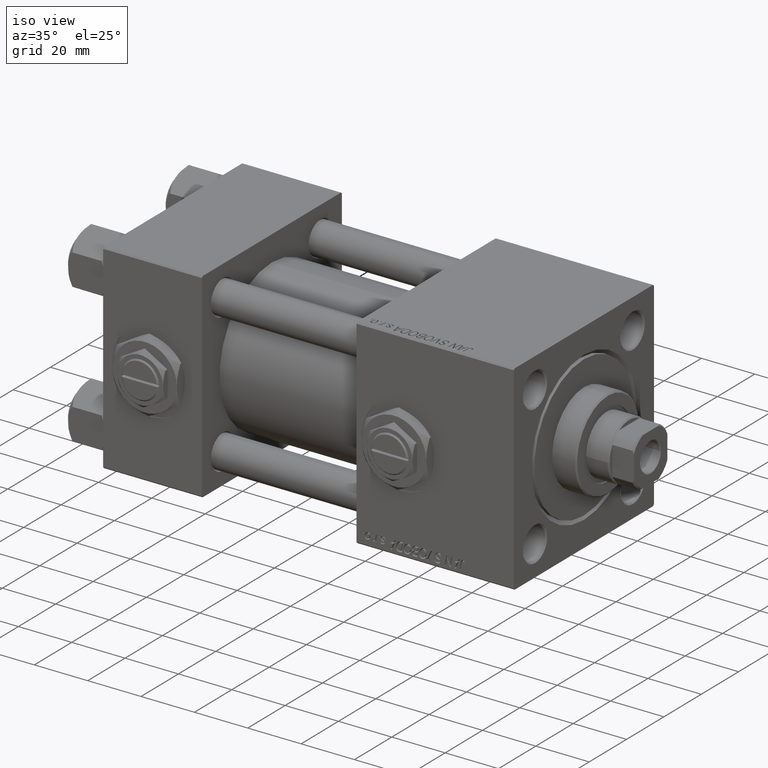
[diagram: clean part render]
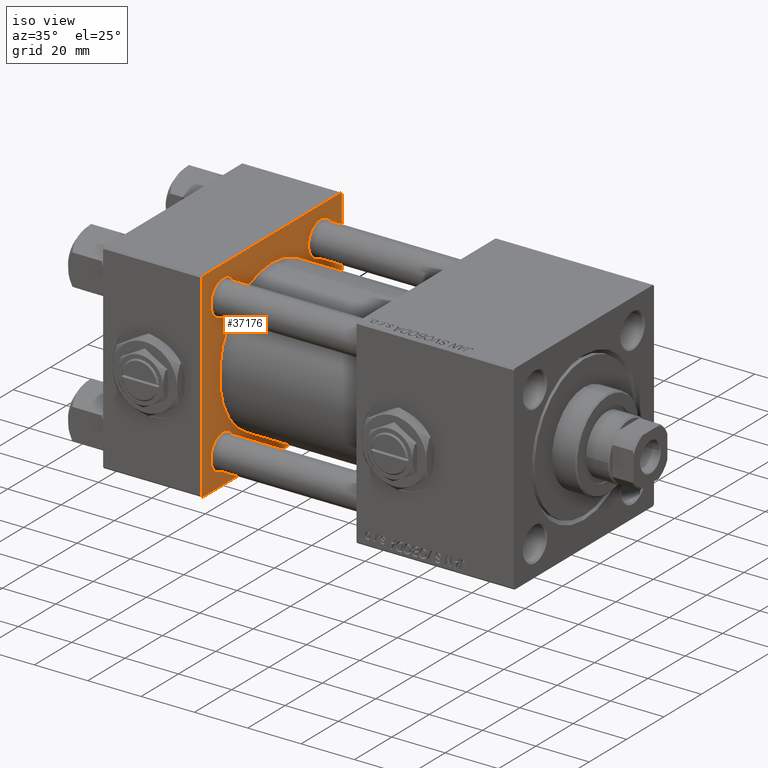
[diagram: same view with one face highlighted and labeled with its STEP entity id]
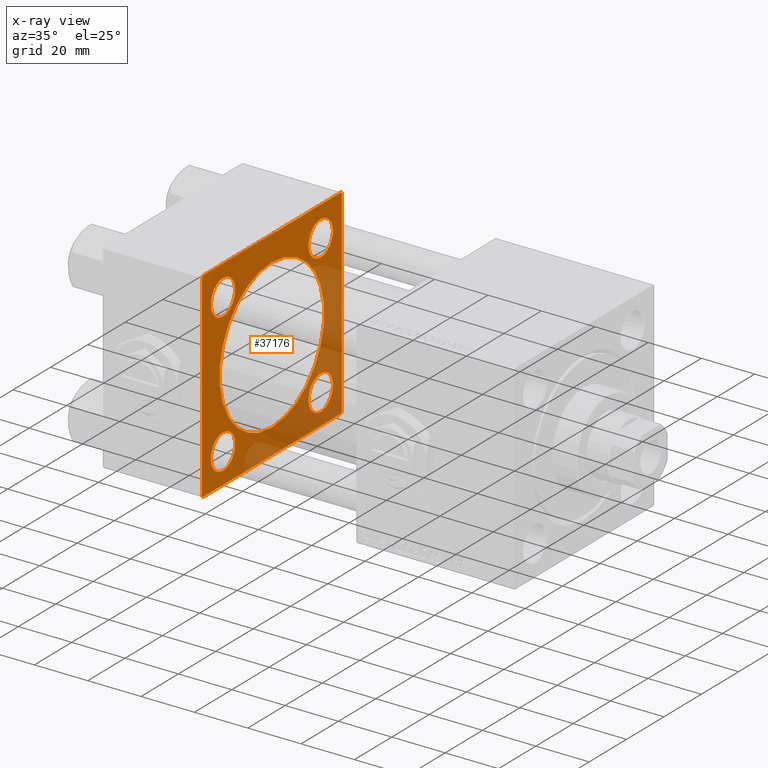
[diagram: x-ray of the same camera — body ghosted, the highlighted face saturated]
A machine part, iso view. The second image highlights one B-rep face of the part: STEP entity #37176.
The next image is the same camera in x-ray: the body ghosted, the highlighted face saturated — about 35% of this face is hidden behind the body in this view.
In plain terms, the highlighted planar face has unit normal (-1, 0, 0).
Its self-contained STEP definition (entity closure, byte-faithful):
#233 = CARTESIAN_POINT ( 'NONE',  ( 37.00000000000000000, 26.14999999999999858, 19.64999999999997016 ) ) ;
#717 = CARTESIAN_POINT ( 'NONE',  ( 37.00000000000000000, -2.602085213965210642E-15, 0.000000000000000000 ) ) ;
#933 = ORIENTED_EDGE ( 'NONE', *, *, #36796, .T. ) ;
#966 = CARTESIAN_POINT ( 'NONE',  ( 37.00000000000000000, -26.14999999999999147, 19.65000000000000213 ) ) ;
#1410 = ORIENTED_EDGE ( 'NONE', *, *, #13169, .T. ) ;
#1576 = DIRECTION ( 'NONE',  ( -0.000000000000000000, 0.7071067811865474617, 0.7071067811865474617 ) ) ;
#1691 = EDGE_CURVE ( 'NONE', #19577, #28573, #36959, .T. ) ;
#2752 = VERTEX_POINT ( 'NONE', #24227 ) ;
#3635 = ORIENTED_EDGE ( 'NONE', *, *, #32104, .T. ) ;
#4008 = DIRECTION ( 'NONE',  ( -1.000000000000000000, 0.000000000000000000, -0.000000000000000000 ) ) ;
#4153 = ORIENTED_EDGE ( 'NONE', *, *, #30692, .T. ) ;
#4421 = DIRECTION ( 'NONE',  ( 0.000000000000000000, 0.000000000000000000, 1.000000000000000000 ) ) ;
#5021 = DIRECTION ( 'NONE',  ( -1.000000000000000000, 0.000000000000000000, -0.000000000000000000 ) ) ;
#5163 = DIRECTION ( 'NONE',  ( 0.000000000000000000, 0.7071067811865524577, -0.7071067811865426878 ) ) ;
#5427 = EDGE_LOOP ( 'NONE', ( #32130, #1410 ) ) ;
#6029 = CARTESIAN_POINT ( 'NONE',  ( 37.00000000000000000, -37.50000000000000711, 37.49999999999999289 ) ) ;
#6327 = AXIS2_PLACEMENT_3D ( 'NONE', #23067, #6703, #31500 ) ;
#6353 = PLANE ( 'NONE',  #35761 ) ;
#6396 = VECTOR ( 'NONE', #25829, 1000.000000000000000 ) ;
#6703 = DIRECTION ( 'NONE',  ( -1.000000000000000000, 0.000000000000000000, -0.000000000000000000 ) ) ;
#6993 = CIRCLE ( 'NONE', #44067, 6.500000000000008882 ) ;
#7079 = CARTESIAN_POINT ( 'NONE',  ( 37.00000000000000000, -26.14999999999999147, -19.65000000000000924 ) ) ;
#7190 = CARTESIAN_POINT ( 'NONE',  ( 37.00000000000000000, -37.50000000000000711, 36.99999999999999289 ) ) ;
#7823 = CIRCLE ( 'NONE', #32225, 6.500000000000030198 ) ;
#8778 = ORIENTED_EDGE ( 'NONE', *, *, #41137, .T. ) ;
#8993 = VERTEX_POINT ( 'NONE', #18019 ) ;
#9251 = VERTEX_POINT ( 'NONE', #7079 ) ;
#9454 = EDGE_CURVE ( 'NONE', #39537, #2752, #13632, .T. ) ;
#9472 = LINE ( 'NONE', #6029, #6396 ) ;
#9778 = DIRECTION ( 'NONE',  ( 0.000000000000000000, 0.000000000000000000, 1.000000000000000000 ) ) ;
#9956 = DIRECTION ( 'NONE',  ( 0.000000000000000000, 0.000000000000000000, 1.000000000000000000 ) ) ;
#10534 = EDGE_CURVE ( 'NONE', #41410, #13268, #29166, .T. ) ;
#10811 = DIRECTION ( 'NONE',  ( 0.000000000000000000, -0.7071067811865474617, 0.7071067811865474617 ) ) ;
#10992 = ORIENTED_EDGE ( 'NONE', *, *, #51998, .F. ) ;
#11091 = EDGE_CURVE ( 'NONE', #47037, #31440, #7823, .T. ) ;
#11214 = CIRCLE ( 'NONE', #39030, 6.500000000000030198 ) ;
#11706 = EDGE_CURVE ( 'NONE', #15715, #21168, #17088, .T. ) ;
#11904 = EDGE_LOOP ( 'NONE', ( #15043, #51636 ) ) ;
#11927 = VECTOR ( 'NONE', #1576, 1000.000000000000114 ) ;
#12068 = VECTOR ( 'NONE', #5163, 1000.000000000000000 ) ;
#12614 = EDGE_CURVE ( 'NONE', #37532, #44684, #6993, .T. ) ;
#13021 = DIRECTION ( 'NONE',  ( 0.000000000000000000, 0.000000000000000000, 1.000000000000000000 ) ) ;
#13169 = EDGE_CURVE ( 'NONE', #9251, #50340, #34846, .T. ) ;
#13268 = VERTEX_POINT ( 'NONE', #23788 ) ;
#13459 = LINE ( 'NONE', #34304, #11927 ) ;
#13632 = LINE ( 'NONE', #14405, #22898 ) ;
#13656 = EDGE_CURVE ( 'NONE', #22536, #2752, #47999, .T. ) ;
#13740 = DIRECTION ( 'NONE',  ( -1.000000000000000000, 0.000000000000000000, -0.000000000000000000 ) ) ;
#13805 = CIRCLE ( 'NONE', #50879, 6.500000000000002665 ) ;
#14001 = FACE_OUTER_BOUND ( 'NONE', #51853, .T. ) ;
#14260 = CARTESIAN_POINT ( 'NONE',  ( 37.00000000000000000, 0.000000000000000000, 0.000000000000000000 ) ) ;
#14405 = CARTESIAN_POINT ( 'NONE',  ( 37.00000000000000000, 37.49999999999999289, -37.50000000000000000 ) ) ;
#14678 = CIRCLE ( 'NONE', #34041, 6.500000000000008882 ) ;
#14699 = CARTESIAN_POINT ( 'NONE',  ( 37.00000000000000000, -26.14999999999999147, 26.15000000000000924 ) ) ;
#14957 = DIRECTION ( 'NONE',  ( 0.000000000000000000, 0.000000000000000000, 1.000000000000000000 ) ) ;
#15043 = ORIENTED_EDGE ( 'NONE', *, *, #15178, .T. ) ;
#15178 = EDGE_CURVE ( 'NONE', #43550, #50293, #11214, .T. ) ;
#15715 = VERTEX_POINT ( 'NONE', #51174 ) ;
#15808 = DIRECTION ( 'NONE',  ( 0.000000000000000000, -1.000000000000000000, -9.251858538542971581E-17 ) ) ;
#16228 = DIRECTION ( 'NONE',  ( 0.000000000000000000, 0.000000000000000000, -1.000000000000000000 ) ) ;
#16454 = CARTESIAN_POINT ( 'NONE',  ( 37.00000000000000000, -26.14999999999999147, 26.15000000000000924 ) ) ;
#17088 = CIRCLE ( 'NONE', #46595, 28.00000000000000000 ) ;
#17311 = CARTESIAN_POINT ( 'NONE',  ( 37.00000000000000000, 26.14999999999999858, 26.15000000000000213 ) ) ;
#17522 = CARTESIAN_POINT ( 'NONE',  ( 37.00000000000000000, -37.50000000000000000, -37.00000000000003553 ) ) ;
#17679 = DIRECTION ( 'NONE',  ( -1.000000000000000000, 0.000000000000000000, -0.000000000000000000 ) ) ;
#17924 = CARTESIAN_POINT ( 'NONE',  ( 37.00000000000000000, 26.14999999999999858, -26.15000000000000213 ) ) ;
#18019 = CARTESIAN_POINT ( 'NONE',  ( 37.00000000000000000, 36.99999999999999289, 37.50000000000000000 ) ) ;
#18262 = CARTESIAN_POINT ( 'NONE',  ( 37.00000000000000000, -37.00000000000000711, 37.49999999999999289 ) ) ;
#18821 = VECTOR ( 'NONE', #10811, 1000.000000000000114 ) ;
#19577 = VERTEX_POINT ( 'NONE', #18262 ) ;
#20167 = ORIENTED_EDGE ( 'NONE', *, *, #35113, .T. ) ;
#20958 = VECTOR ( 'NONE', #29553, 1000.000000000000114 ) ;
#21168 = VERTEX_POINT ( 'NONE', #45754 ) ;
#21222 = VECTOR ( 'NONE', #16228, 1000.000000000000000 ) ;
#21229 = EDGE_LOOP ( 'NONE', ( #933, #26314 ) ) ;
#21894 = CARTESIAN_POINT ( 'NONE',  ( 37.00000000000000000, 26.14999999999999858, -32.65000000000003411 ) ) ;
#22536 = VERTEX_POINT ( 'NONE', #17522 ) ;
#22794 = EDGE_LOOP ( 'NONE', ( #36617, #37709 ) ) ;
#22898 = VECTOR ( 'NONE', #50041, 1000.000000000000000 ) ;
#23067 = CARTESIAN_POINT ( 'NONE',  ( 37.00000000000000000, 26.14999999999999858, -26.15000000000000213 ) ) ;
#23472 = DIRECTION ( 'NONE',  ( 0.000000000000000000, 0.000000000000000000, 1.000000000000000000 ) ) ;
#23656 = AXIS2_PLACEMENT_3D ( 'NONE', #17311, #4008, #51252 ) ;
#23788 = CARTESIAN_POINT ( 'NONE',  ( 37.00000000000000000, 37.49999999999999289, -36.99999999999998579 ) ) ;
#23905 = AXIS2_PLACEMENT_3D ( 'NONE', #34105, #33846, #41779 ) ;
#23957 = CARTESIAN_POINT ( 'NONE',  ( 37.00000000000000000, -26.14999999999999147, 32.65000000000001990 ) ) ;
#24227 = CARTESIAN_POINT ( 'NONE',  ( 37.00000000000000000, -37.00000000000002132, -37.50000000000000711 ) ) ;
#24587 = VECTOR ( 'NONE', #15808, 1000.000000000000000 ) ;
#24771 = CARTESIAN_POINT ( 'NONE',  ( 37.00000000000000000, 37.49999999999999289, 37.50000000000000000 ) ) ;
#25339 = CARTESIAN_POINT ( 'NONE',  ( 37.00000000000000000, -26.14999999999999147, -32.65000000000001279 ) ) ;
#25829 = DIRECTION ( 'NONE',  ( 0.000000000000000000, 9.251858538542971581E-17, -1.000000000000000000 ) ) ;
#26134 = FACE_BOUND ( 'NONE', #5427, .T. ) ;
#26314 = ORIENTED_EDGE ( 'NONE', *, *, #12614, .T. ) ;
#27959 = CARTESIAN_POINT ( 'NONE',  ( 37.00000000000000000, -37.00000000000002132, -37.50000000000000711 ) ) ;
#28541 = EDGE_CURVE ( 'NONE', #50293, #43550, #28695, .T. ) ;
#28573 = VERTEX_POINT ( 'NONE', #7190 ) ;
#28695 = CIRCLE ( 'NONE', #23656, 6.500000000000030198 ) ;
#29166 = LINE ( 'NONE', #48677, #21222 ) ;
#29553 = DIRECTION ( 'NONE',  ( -0.000000000000000000, -0.7071067811865474617, -0.7071067811865474617 ) ) ;
#30692 = EDGE_CURVE ( 'NONE', #39537, #13268, #13459, .T. ) ;
#30800 = DIRECTION ( 'NONE',  ( -1.000000000000000000, 0.000000000000000000, -0.000000000000000000 ) ) ;
#30869 = LINE ( 'NONE', #46968, #18821 ) ;
#31125 = DIRECTION ( 'NONE',  ( 1.000000000000000000, -0.000000000000000000, 0.000000000000000000 ) ) ;
#31440 = VERTEX_POINT ( 'NONE', #21894 ) ;
#31500 = DIRECTION ( 'NONE',  ( 0.000000000000000000, 0.000000000000000000, 1.000000000000000000 ) ) ;
#32104 = EDGE_CURVE ( 'NONE', #8993, #19577, #44314, .T. ) ;
#32130 = ORIENTED_EDGE ( 'NONE', *, *, #36168, .T. ) ;
#32225 = AXIS2_PLACEMENT_3D ( 'NONE', #17924, #5021, #37239 ) ;
#32343 = CARTESIAN_POINT ( 'NONE',  ( 37.00000000000000000, 36.99999999999997868, -37.50000000000000000 ) ) ;
#32564 = CIRCLE ( 'NONE', #46070, 28.00000000000000000 ) ;
#33731 = ORIENTED_EDGE ( 'NONE', *, *, #13656, .T. ) ;
#33846 = DIRECTION ( 'NONE',  ( -1.000000000000000000, 0.000000000000000000, -0.000000000000000000 ) ) ;
#34041 = AXIS2_PLACEMENT_3D ( 'NONE', #16454, #40749, #13021 ) ;
#34105 = CARTESIAN_POINT ( 'NONE',  ( 37.00000000000000000, -26.14999999999999147, -26.15000000000000924 ) ) ;
#34304 = CARTESIAN_POINT ( 'NONE',  ( 37.00000000000000000, 37.49999999999999289, -36.99999999999998579 ) ) ;
#34588 = FACE_BOUND ( 'NONE', #21229, .T. ) ;
#34846 = CIRCLE ( 'NONE', #23905, 6.500000000000002665 ) ;
#35113 = EDGE_CURVE ( 'NONE', #41410, #8993, #30869, .T. ) ;
#35460 = CARTESIAN_POINT ( 'NONE',  ( 37.00000000000000000, 26.14999999999999858, -19.64999999999997371 ) ) ;
#35761 = AXIS2_PLACEMENT_3D ( 'NONE', #14260, #13740, #42516 ) ;
#36168 = EDGE_CURVE ( 'NONE', #50340, #9251, #13805, .T. ) ;
#36617 = ORIENTED_EDGE ( 'NONE', *, *, #38808, .T. ) ;
#36626 = ORIENTED_EDGE ( 'NONE', *, *, #11706, .F. ) ;
#36631 = DIRECTION ( 'NONE',  ( 1.000000000000000000, -0.000000000000000000, 0.000000000000000000 ) ) ;
#36796 = EDGE_CURVE ( 'NONE', #44684, #37532, #14678, .T. ) ;
#36959 = LINE ( 'NONE', #49602, #20958 ) ;
#37176 = ADVANCED_FACE ( 'NONE', ( #26134, #45940, #34588, #42254, #46201, #14001 ), #6353, .F. ) ;
#37239 = DIRECTION ( 'NONE',  ( 0.000000000000000000, 0.000000000000000000, 1.000000000000000000 ) ) ;
#37532 = VERTEX_POINT ( 'NONE', #23957 ) ;
#37709 = ORIENTED_EDGE ( 'NONE', *, *, #11091, .T. ) ;
#37950 = CARTESIAN_POINT ( 'NONE',  ( 37.00000000000000000, 26.14999999999999858, 26.15000000000000213 ) ) ;
#38808 = EDGE_CURVE ( 'NONE', #31440, #47037, #45090, .T. ) ;
#39030 = AXIS2_PLACEMENT_3D ( 'NONE', #37950, #46113, #9956 ) ;
#39537 = VERTEX_POINT ( 'NONE', #32343 ) ;
#39799 = CARTESIAN_POINT ( 'NONE',  ( 37.00000000000000000, 37.49999999999999289, 37.00000000000000000 ) ) ;
#40749 = DIRECTION ( 'NONE',  ( -1.000000000000000000, 0.000000000000000000, -0.000000000000000000 ) ) ;
#41137 = EDGE_CURVE ( 'NONE', #28573, #22536, #9472, .T. ) ;
#41401 = EDGE_LOOP ( 'NONE', ( #10992, #36626 ) ) ;
#41410 = VERTEX_POINT ( 'NONE', #39799 ) ;
#41779 = DIRECTION ( 'NONE',  ( 0.000000000000000000, 0.000000000000000000, 1.000000000000000000 ) ) ;
#42254 = FACE_BOUND ( 'NONE', #11904, .T. ) ;
#42516 = DIRECTION ( 'NONE',  ( -0.000000000000000000, 0.000000000000000000, 1.000000000000000000 ) ) ;
#43149 = ORIENTED_EDGE ( 'NONE', *, *, #10534, .F. ) ;
#43550 = VERTEX_POINT ( 'NONE', #233 ) ;
#44067 = AXIS2_PLACEMENT_3D ( 'NONE', #14699, #30800, #14957 ) ;
#44314 = LINE ( 'NONE', #24771, #24587 ) ;
#44375 = ORIENTED_EDGE ( 'NONE', *, *, #9454, .F. ) ;
#44607 = CARTESIAN_POINT ( 'NONE',  ( 37.00000000000000000, 26.14999999999999858, 32.65000000000004121 ) ) ;
#44684 = VERTEX_POINT ( 'NONE', #966 ) ;
#45090 = CIRCLE ( 'NONE', #6327, 6.500000000000030198 ) ;
#45419 = CARTESIAN_POINT ( 'NONE',  ( 37.00000000000000000, -26.14999999999999147, -26.15000000000000924 ) ) ;
#45754 = CARTESIAN_POINT ( 'NONE',  ( 37.00000000000000000, -2.602085213965210642E-15, 28.00000000000000000 ) ) ;
#45940 = FACE_BOUND ( 'NONE', #22794, .T. ) ;
#46070 = AXIS2_PLACEMENT_3D ( 'NONE', #47996, #31125, #23472 ) ;
#46113 = DIRECTION ( 'NONE',  ( -1.000000000000000000, 0.000000000000000000, -0.000000000000000000 ) ) ;
#46201 = FACE_BOUND ( 'NONE', #41401, .T. ) ;
#46595 = AXIS2_PLACEMENT_3D ( 'NONE', #717, #36631, #4421 ) ;
#46968 = CARTESIAN_POINT ( 'NONE',  ( 37.00000000000000000, 36.99999999999999289, 37.50000000000000000 ) ) ;
#47037 = VERTEX_POINT ( 'NONE', #35460 ) ;
#47996 = CARTESIAN_POINT ( 'NONE',  ( 37.00000000000000000, -2.602085213965210642E-15, 0.000000000000000000 ) ) ;
#47999 = LINE ( 'NONE', #27959, #12068 ) ;
#48677 = CARTESIAN_POINT ( 'NONE',  ( 37.00000000000000000, 37.49999999999999289, 37.50000000000000000 ) ) ;
#49602 = CARTESIAN_POINT ( 'NONE',  ( 37.00000000000000000, -37.50000000000000711, 36.99999999999999289 ) ) ;
#50041 = DIRECTION ( 'NONE',  ( 0.000000000000000000, -1.000000000000000000, -9.251858538542972814E-17 ) ) ;
#50293 = VERTEX_POINT ( 'NONE', #44607 ) ;
#50340 = VERTEX_POINT ( 'NONE', #25339 ) ;
#50879 = AXIS2_PLACEMENT_3D ( 'NONE', #45419, #17679, #9778 ) ;
#51174 = CARTESIAN_POINT ( 'NONE',  ( 37.00000000000000000, 8.269258236473776482E-16, -28.00000000000000000 ) ) ;
#51252 = DIRECTION ( 'NONE',  ( 0.000000000000000000, 0.000000000000000000, 1.000000000000000000 ) ) ;
#51345 = ORIENTED_EDGE ( 'NONE', *, *, #1691, .T. ) ;
#51636 = ORIENTED_EDGE ( 'NONE', *, *, #28541, .T. ) ;
#51853 = EDGE_LOOP ( 'NONE', ( #44375, #4153, #43149, #20167, #3635, #51345, #8778, #33731 ) ) ;
#51998 = EDGE_CURVE ( 'NONE', #21168, #15715, #32564, .T. ) ;